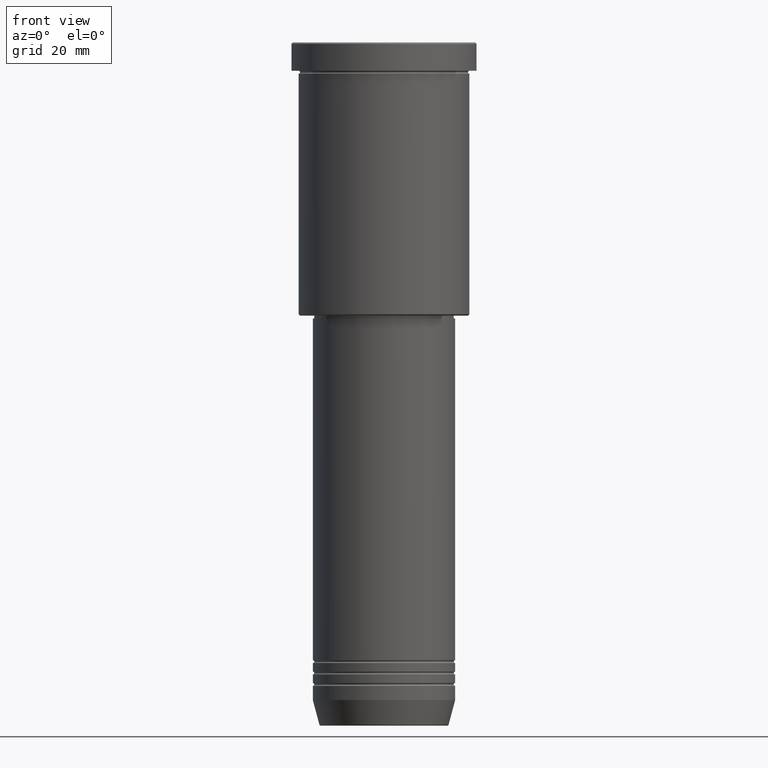
[diagram: clean part render]
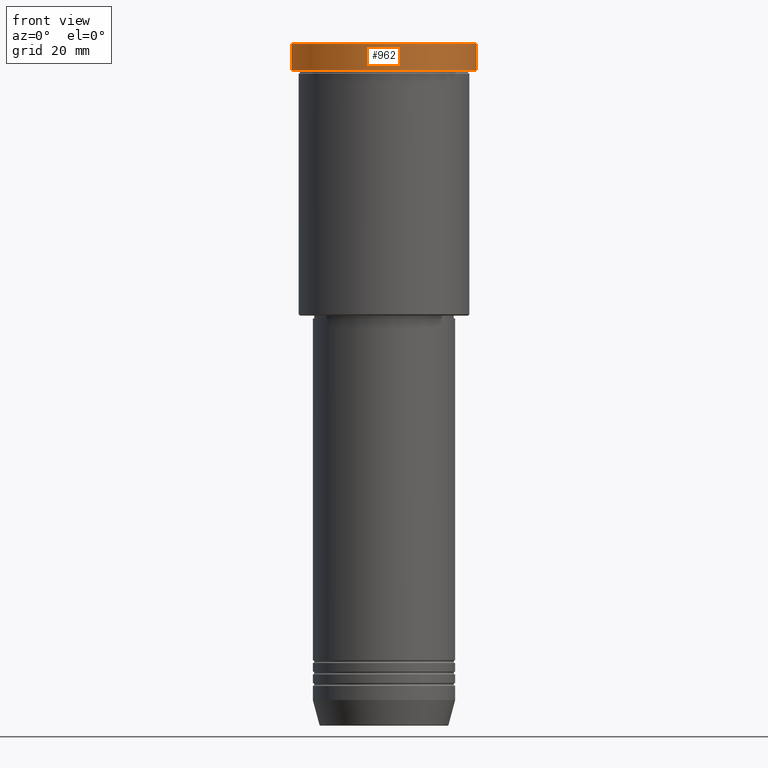
[diagram: same view with one face highlighted and labeled with its STEP entity id]
A machine part, front view. The second image highlights one B-rep face of the part: STEP entity #962.
In plain terms, the highlighted cylindrical surface (partial cylindrical patch) has radius 32.5 mm, axis along (-0, -0, 1).
Its self-contained STEP definition (entity closure, byte-faithful):
#31 = VERTEX_POINT ( 'NONE', #853 ) ;
#47 = CARTESIAN_POINT ( 'NONE',  ( 0.000000000000000000, 0.000000000000000000, -0.5000000000000004441 ) ) ;
#54 = DIRECTION ( 'NONE',  ( 0.000000000000000000, 0.000000000000000000, -1.000000000000000000 ) ) ;
#66 = CARTESIAN_POINT ( 'NONE',  ( 0.000000000000000000, 0.000000000000000000, -9.999999999999992895 ) ) ;
#71 = AXIS2_PLACEMENT_3D ( 'NONE', #66, #1069, #772 ) ;
#85 = LINE ( 'NONE', #1080, #1183 ) ;
#110 = CARTESIAN_POINT ( 'NONE',  ( 32.50000000000000000, 0.000000000000000000, 0.000000000000000000 ) ) ;
#158 = CYLINDRICAL_SURFACE ( 'NONE', #883, 32.50000000000000000 ) ;
#206 = CIRCLE ( 'NONE', #806, 32.50000000000000000 ) ;
#301 = EDGE_LOOP ( 'NONE', ( #1172, #789, #943, #509 ) ) ;
#351 = CARTESIAN_POINT ( 'NONE',  ( -32.50000000000000000, 3.980102097228898626E-15, -0.5000000000000004441 ) ) ;
#353 = VERTEX_POINT ( 'NONE', #1114 ) ;
#386 = EDGE_CURVE ( 'NONE', #353, #554, #206, .T. ) ;
#400 = EDGE_CURVE ( 'NONE', #31, #484, #984, .T. ) ;
#484 = VERTEX_POINT ( 'NONE', #791 ) ;
#509 = ORIENTED_EDGE ( 'NONE', *, *, #386, .T. ) ;
#524 = DIRECTION ( 'NONE',  ( -0.000000000000000000, -0.000000000000000000, 1.000000000000000000 ) ) ;
#554 = VERTEX_POINT ( 'NONE', #351 ) ;
#612 = DIRECTION ( 'NONE',  ( 1.000000000000000000, 0.000000000000000000, 0.000000000000000000 ) ) ;
#653 = LINE ( 'NONE', #110, #1143 ) ;
#685 = EDGE_CURVE ( 'NONE', #484, #353, #653, .T. ) ;
#764 = DIRECTION ( 'NONE',  ( -0.000000000000000000, -0.000000000000000000, 1.000000000000000000 ) ) ;
#772 = DIRECTION ( 'NONE',  ( 1.000000000000000000, 0.000000000000000000, 0.000000000000000000 ) ) ;
#789 = ORIENTED_EDGE ( 'NONE', *, *, #400, .T. ) ;
#791 = CARTESIAN_POINT ( 'NONE',  ( 32.50000000000000000, 0.000000000000000000, -9.999999999999992895 ) ) ;
#806 = AXIS2_PLACEMENT_3D ( 'NONE', #47, #54, #612 ) ;
#853 = CARTESIAN_POINT ( 'NONE',  ( -32.50000000000000000, 3.980102097228898626E-15, -9.999999999999992895 ) ) ;
#883 = AXIS2_PLACEMENT_3D ( 'NONE', #1161, #524, #894 ) ;
#894 = DIRECTION ( 'NONE',  ( 1.000000000000000000, 0.000000000000000000, 0.000000000000000000 ) ) ;
#943 = ORIENTED_EDGE ( 'NONE', *, *, #685, .T. ) ;
#962 = ADVANCED_FACE ( 'NONE', ( #1067 ), #158, .T. ) ;
#984 = CIRCLE ( 'NONE', #71, 32.50000000000000000 ) ;
#987 = DIRECTION ( 'NONE',  ( -0.000000000000000000, -0.000000000000000000, 1.000000000000000000 ) ) ;
#1067 = FACE_OUTER_BOUND ( 'NONE', #301, .T. ) ;
#1069 = DIRECTION ( 'NONE',  ( -0.000000000000000000, -0.000000000000000000, 1.000000000000000000 ) ) ;
#1078 = EDGE_CURVE ( 'NONE', #31, #554, #85, .T. ) ;
#1080 = CARTESIAN_POINT ( 'NONE',  ( -32.50000000000000000, 3.980102097228898626E-15, 0.000000000000000000 ) ) ;
#1114 = CARTESIAN_POINT ( 'NONE',  ( 32.50000000000000000, 0.000000000000000000, -0.5000000000000004441 ) ) ;
#1143 = VECTOR ( 'NONE', #764, 1000.000000000000000 ) ;
#1161 = CARTESIAN_POINT ( 'NONE',  ( 0.000000000000000000, 0.000000000000000000, 0.000000000000000000 ) ) ;
#1172 = ORIENTED_EDGE ( 'NONE', *, *, #1078, .F. ) ;
#1183 = VECTOR ( 'NONE', #987, 1000.000000000000000 ) ;